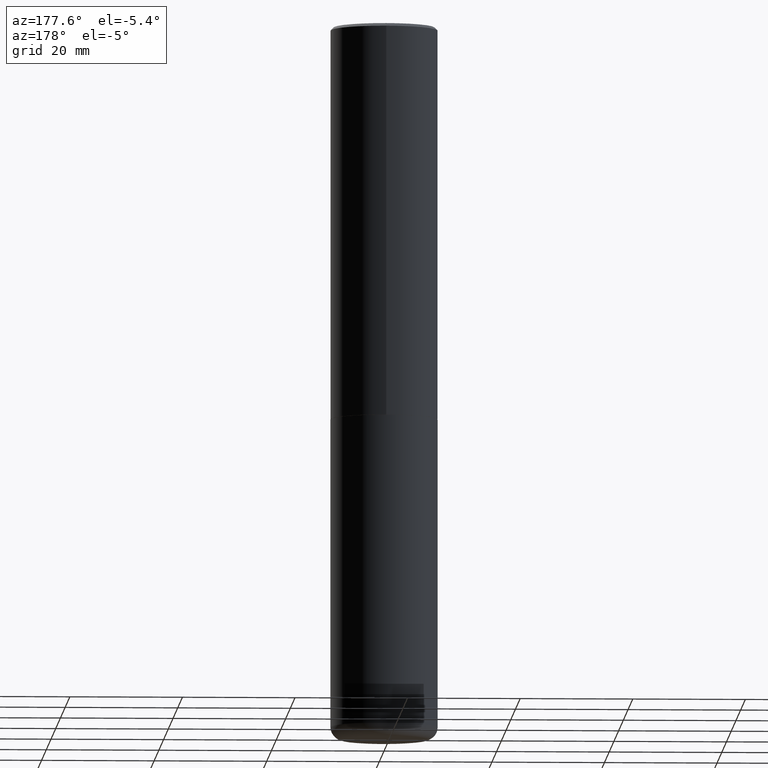
[diagram: clean part render]
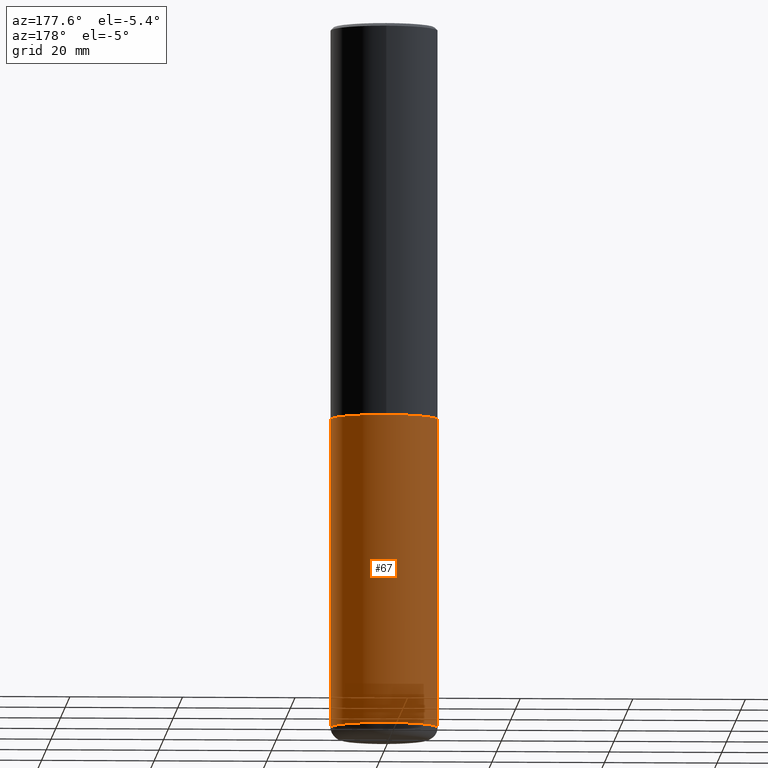
[diagram: same view with one face highlighted and labeled with its STEP entity id]
A machine part, auxiliary view. The second image highlights one B-rep face of the part: STEP entity #67.
In plain terms, the highlighted cylindrical surface (partial cylindrical patch) has radius 9.525 mm, axis along (-0, 0, 1).
Its self-contained STEP definition (entity closure, byte-faithful):
#15 = DIRECTION ( 'NONE',  ( 1.000000000000000000, -6.982962677686266711E-15, 0.000000000000000000 ) ) ;
#30 = AXIS2_PLACEMENT_3D ( 'NONE', #89, #182, #50 ) ;
#37 = CARTESIAN_POINT ( 'NONE',  ( -0.3750000000000000555, -1.070783826866887333E-14, -2.750000000000000000 ) ) ;
#50 = DIRECTION ( 'NONE',  ( 1.000000000000000000, -6.982962677686269077E-15, 0.000000000000000000 ) ) ;
#55 = VERTEX_POINT ( 'NONE', #37 ) ;
#56 = CARTESIAN_POINT ( 'NONE',  ( -0.3749999999999999445, 2.664535259100375303E-15, -1.844600658845589318E-29 ) ) ;
#62 = VERTEX_POINT ( 'NONE', #170 ) ;
#67 = ADVANCED_FACE ( 'NONE', ( #101 ), #274, .T. ) ;
#79 = DIRECTION ( 'NONE',  ( -2.445468806185136597E-29, 3.491481338843145583E-15, 1.000000000000000000 ) ) ;
#89 = CARTESIAN_POINT ( 'NONE',  ( 1.200725183836902132E-28, -1.714317337371984662E-14, -4.910000000000000142 ) ) ;
#95 = CIRCLE ( 'NONE', #30, 0.3749999999999999445 ) ;
#101 = FACE_OUTER_BOUND ( 'NONE', #143, .T. ) ;
#113 = CARTESIAN_POINT ( 'NONE',  ( 0.3750000000000000555, -1.222018468595100145E-14, -2.750000000000000000 ) ) ;
#116 = CARTESIAN_POINT ( 'NONE',  ( 0.3749999999999999445, -2.618611004132349622E-15, 1.828566290923475642E-29 ) ) ;
#121 = EDGE_CURVE ( 'NONE', #277, #62, #95, .T. ) ;
#143 = EDGE_LOOP ( 'NONE', ( #350, #210, #242, #335 ) ) ;
#150 = EDGE_CURVE ( 'NONE', #277, #236, #340, .T. ) ;
#166 = EDGE_CURVE ( 'NONE', #236, #55, #256, .T. ) ;
#167 = VECTOR ( 'NONE', #408, 39.37007874015748143 ) ;
#170 = CARTESIAN_POINT ( 'NONE',  ( -0.3749999999999999445, -1.447863811461947092E-14, -4.910000000000000142 ) ) ;
#182 = DIRECTION ( 'NONE',  ( -2.445468806185136597E-29, 3.491481338843145583E-15, 1.000000000000000000 ) ) ;
#190 = DIRECTION ( 'NONE',  ( -2.445468806185136597E-29, 3.491481338843145583E-15, 1.000000000000000000 ) ) ;
#201 = AXIS2_PLACEMENT_3D ( 'NONE', #239, #79, #378 ) ;
#210 = ORIENTED_EDGE ( 'NONE', *, *, #368, .T. ) ;
#236 = VERTEX_POINT ( 'NONE', #113 ) ;
#239 = CARTESIAN_POINT ( 'NONE',  ( 0.000000000000000000, 0.000000000000000000, 0.000000000000000000 ) ) ;
#242 = ORIENTED_EDGE ( 'NONE', *, *, #166, .F. ) ;
#256 = CIRCLE ( 'NONE', #372, 0.3750000000000000555 ) ;
#268 = LINE ( 'NONE', #56, #336 ) ;
#274 = CYLINDRICAL_SURFACE ( 'NONE', #201, 0.3749999999999999445 ) ;
#277 = VERTEX_POINT ( 'NONE', #349 ) ;
#309 = CARTESIAN_POINT ( 'NONE',  ( 6.725039217009124520E-29, -9.601573681818649859E-15, -2.750000000000000000 ) ) ;
#335 = ORIENTED_EDGE ( 'NONE', *, *, #150, .F. ) ;
#336 = VECTOR ( 'NONE', #409, 39.37007874015748143 ) ;
#340 = LINE ( 'NONE', #116, #167 ) ;
#349 = CARTESIAN_POINT ( 'NONE',  ( 0.3749999999999999445, -1.976178437785219664E-14, -4.910000000000000142 ) ) ;
#350 = ORIENTED_EDGE ( 'NONE', *, *, #121, .T. ) ;
#368 = EDGE_CURVE ( 'NONE', #62, #55, #268, .T. ) ;
#372 = AXIS2_PLACEMENT_3D ( 'NONE', #309, #190, #15 ) ;
#378 = DIRECTION ( 'NONE',  ( 1.000000000000000000, -6.982962677686266711E-15, 4.876176775795935793E-29 ) ) ;
#408 = DIRECTION ( 'NONE',  ( -2.445468806185136877E-29, 3.491481338843145188E-15, 1.000000000000000000 ) ) ;
#409 = DIRECTION ( 'NONE',  ( -2.445468806185136877E-29, 3.491481338843145188E-15, 1.000000000000000000 ) ) ;